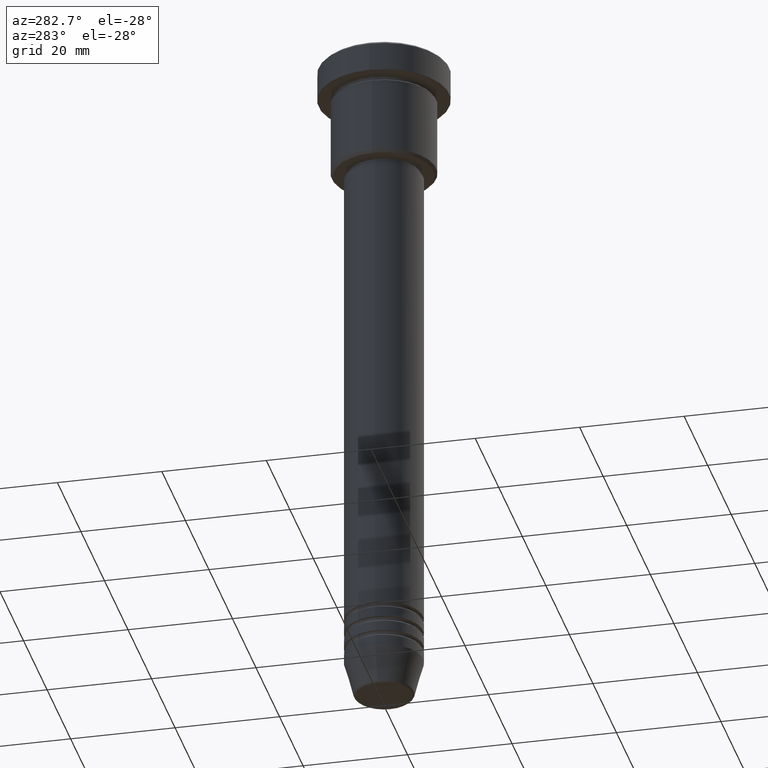
[diagram: clean part render]
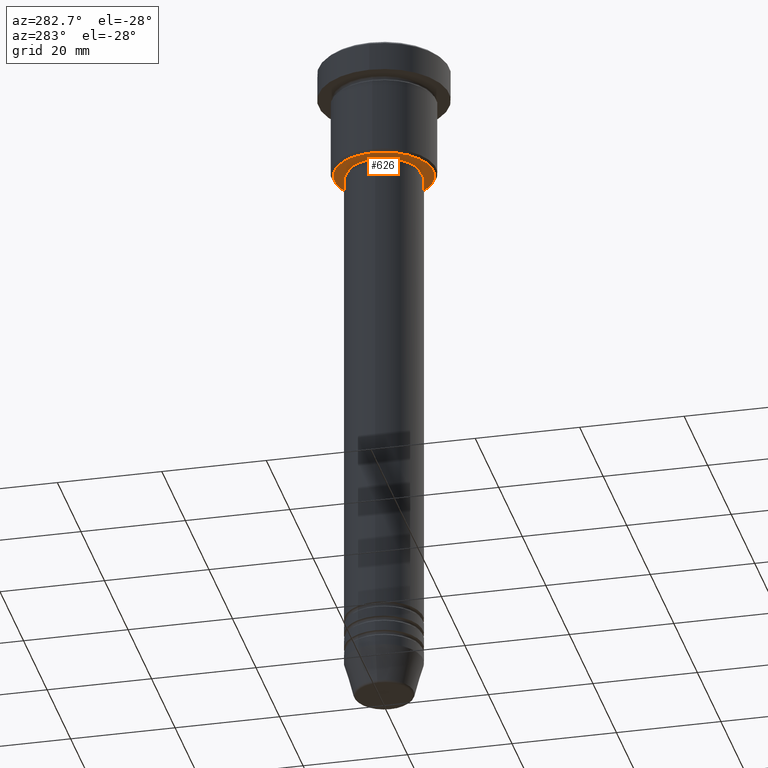
[diagram: same view with one face highlighted and labeled with its STEP entity id]
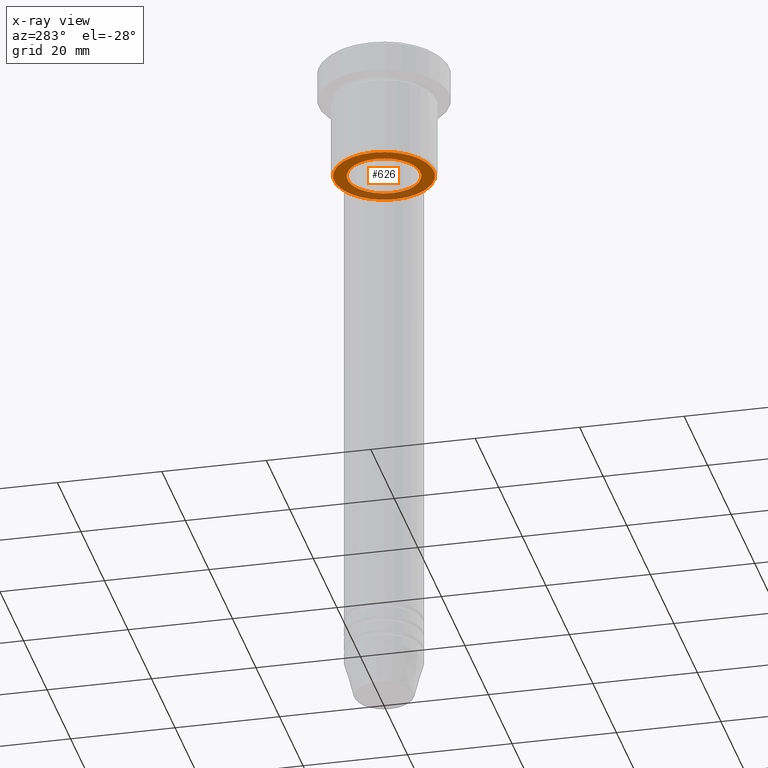
[diagram: x-ray of the same camera — body ghosted, the highlighted face saturated]
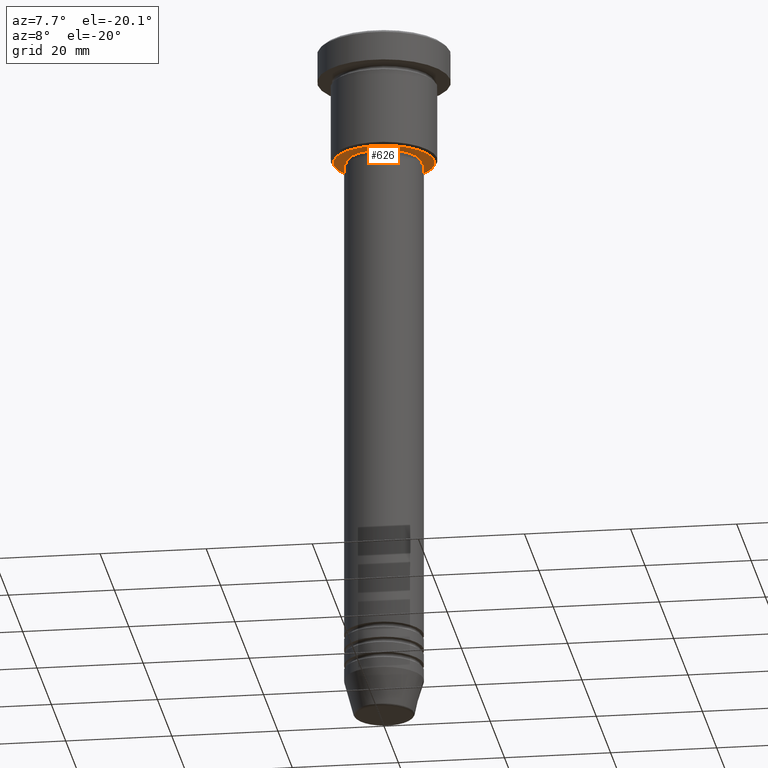
[diagram: same view with one face highlighted and labeled with its STEP entity id]
A machine part, auxiliary view. The second image highlights one B-rep face of the part: STEP entity #626.
The next image is the same camera in x-ray: the body ghosted, the highlighted face saturated — about 21% of this face is hidden behind the body in this view.
A second angle (auxiliary view) of the same face is appended — the face is thin or edge-on in the first view.
In plain terms, the highlighted planar face has unit normal (0, 0, -1).
Its self-contained STEP definition (entity closure, byte-faithful):
#1 = AXIS2_PLACEMENT_3D ( 'NONE', #1153, #806, #891 ) ;
#9 = CARTESIAN_POINT ( 'NONE',  ( 0.000000000000000000, 0.000000000000000000, -21.99999999999999645 ) ) ;
#25 = CIRCLE ( 'NONE', #217, 9.500000000000008882 ) ;
#34 = EDGE_CURVE ( 'NONE', #273, #362, #25, .T. ) ;
#39 = EDGE_CURVE ( 'NONE', #381, #927, #293, .T. ) ;
#52 = ORIENTED_EDGE ( 'NONE', *, *, #808, .T. ) ;
#60 = DIRECTION ( 'NONE',  ( 0.000000000000000000, 0.000000000000000000, -1.000000000000000000 ) ) ;
#73 = PLANE ( 'NONE',  #535 ) ;
#183 = CARTESIAN_POINT ( 'NONE',  ( 0.000000000000000000, 0.000000000000000000, -21.99999999999999645 ) ) ;
#206 = CARTESIAN_POINT ( 'NONE',  ( -9.500000000000008882, 1.194030629168669864E-15, -21.99999999999999645 ) ) ;
#216 = CARTESIAN_POINT ( 'NONE',  ( 6.999999999999999112, 0.000000000000000000, -21.99999999999999645 ) ) ;
#217 = AXIS2_PLACEMENT_3D ( 'NONE', #257, #795, #1159 ) ;
#219 = CIRCLE ( 'NONE', #923, 9.500000000000008882 ) ;
#254 = ORIENTED_EDGE ( 'NONE', *, *, #39, .T. ) ;
#257 = CARTESIAN_POINT ( 'NONE',  ( 0.000000000000000000, 0.000000000000000000, -21.99999999999999645 ) ) ;
#259 = AXIS2_PLACEMENT_3D ( 'NONE', #9, #286, #292 ) ;
#273 = VERTEX_POINT ( 'NONE', #1117 ) ;
#286 = DIRECTION ( 'NONE',  ( -0.000000000000000000, -0.000000000000000000, 1.000000000000000000 ) ) ;
#292 = DIRECTION ( 'NONE',  ( 1.000000000000000000, 0.000000000000000000, 0.000000000000000000 ) ) ;
#293 = CIRCLE ( 'NONE', #1, 6.999999999999999112 ) ;
#306 = CARTESIAN_POINT ( 'NONE',  ( -6.999999999999999112, 8.572527594031472204E-16, -21.99999999999999645 ) ) ;
#358 = CARTESIAN_POINT ( 'NONE',  ( 0.000000000000000000, 10.00000000000000000, -21.99999999999999645 ) ) ;
#362 = VERTEX_POINT ( 'NONE', #206 ) ;
#381 = VERTEX_POINT ( 'NONE', #216 ) ;
#441 = DIRECTION ( 'NONE',  ( -1.000000000000000000, 0.000000000000000000, -0.000000000000000000 ) ) ;
#535 = AXIS2_PLACEMENT_3D ( 'NONE', #358, #60, #441 ) ;
#550 = DIRECTION ( 'NONE',  ( -1.000000000000000000, 0.000000000000000000, 0.000000000000000000 ) ) ;
#612 = CIRCLE ( 'NONE', #259, 6.999999999999999112 ) ;
#626 = ADVANCED_FACE ( 'NONE', ( #901, #897 ), #73, .T. ) ;
#644 = DIRECTION ( 'NONE',  ( 0.000000000000000000, 0.000000000000000000, -1.000000000000000000 ) ) ;
#691 = EDGE_CURVE ( 'NONE', #927, #381, #612, .T. ) ;
#785 = ORIENTED_EDGE ( 'NONE', *, *, #34, .T. ) ;
#795 = DIRECTION ( 'NONE',  ( 0.000000000000000000, 0.000000000000000000, -1.000000000000000000 ) ) ;
#806 = DIRECTION ( 'NONE',  ( -0.000000000000000000, -0.000000000000000000, 1.000000000000000000 ) ) ;
#808 = EDGE_CURVE ( 'NONE', #362, #273, #219, .T. ) ;
#891 = DIRECTION ( 'NONE',  ( 1.000000000000000000, 0.000000000000000000, 0.000000000000000000 ) ) ;
#897 = FACE_BOUND ( 'NONE', #910, .T. ) ;
#901 = FACE_OUTER_BOUND ( 'NONE', #1137, .T. ) ;
#910 = EDGE_LOOP ( 'NONE', ( #254, #1053 ) ) ;
#923 = AXIS2_PLACEMENT_3D ( 'NONE', #183, #644, #550 ) ;
#927 = VERTEX_POINT ( 'NONE', #306 ) ;
#1053 = ORIENTED_EDGE ( 'NONE', *, *, #691, .T. ) ;
#1117 = CARTESIAN_POINT ( 'NONE',  ( 9.500000000000008882, 0.000000000000000000, -21.99999999999999645 ) ) ;
#1137 = EDGE_LOOP ( 'NONE', ( #785, #52 ) ) ;
#1153 = CARTESIAN_POINT ( 'NONE',  ( 0.000000000000000000, 0.000000000000000000, -21.99999999999999645 ) ) ;
#1159 = DIRECTION ( 'NONE',  ( -1.000000000000000000, 0.000000000000000000, 0.000000000000000000 ) ) ;